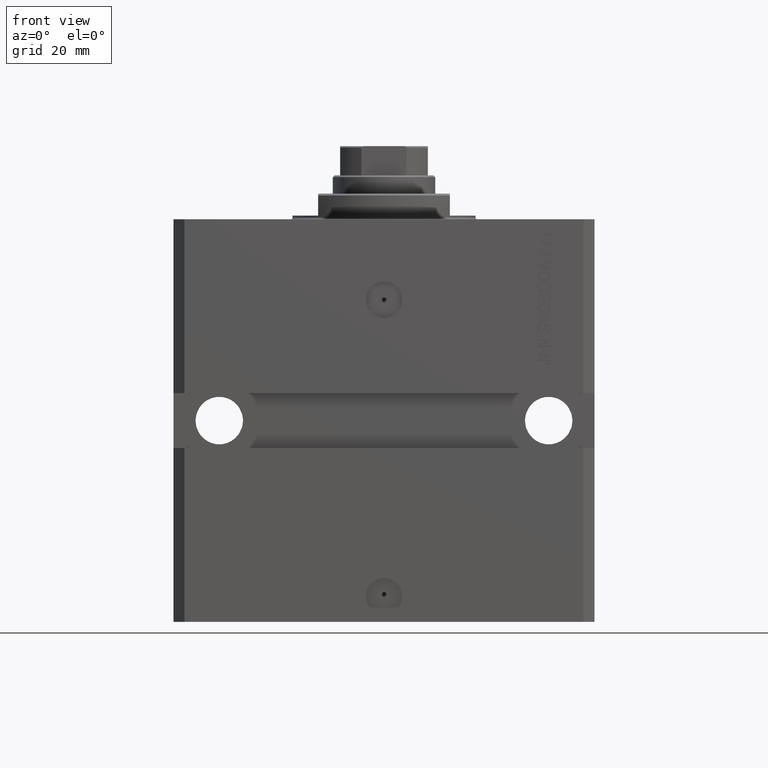
[diagram: clean part render]
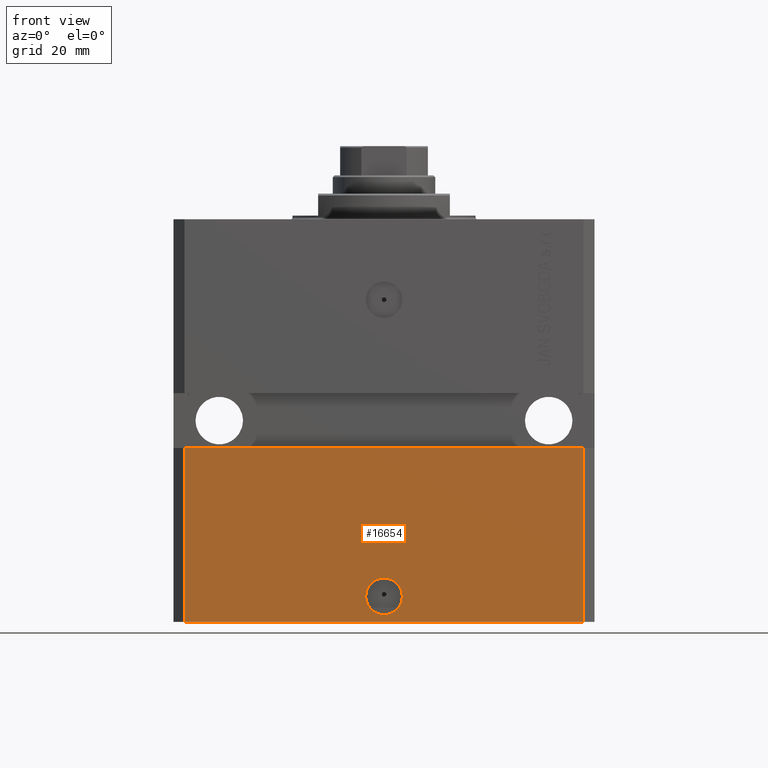
[diagram: same view with one face highlighted and labeled with its STEP entity id]
A machine part, front view. The second image highlights one B-rep face of the part: STEP entity #16654.
In plain terms, the highlighted planar face has unit normal (0, -1, 0).
Its self-contained STEP definition (entity closure, byte-faithful):
#1822 = EDGE_CURVE ( 'NONE', #22223, #6799, #10143, .T. ) ;
#2278 = VECTOR ( 'NONE', #40989, 1000.000000000000000 ) ;
#2490 = EDGE_CURVE ( 'NONE', #15392, #45887, #49194, .T. ) ;
#4549 = ORIENTED_EDGE ( 'NONE', *, *, #1822, .T. ) ;
#5079 = LINE ( 'NONE', #19751, #46240 ) ;
#5912 = AXIS2_PLACEMENT_3D ( 'NONE', #13220, #28373, #39812 ) ;
#6164 = DIRECTION ( 'NONE',  ( 1.000000000000000000, 0.000000000000000000, 0.000000000000000000 ) ) ;
#6799 = VERTEX_POINT ( 'NONE', #35980 ) ;
#7238 = LINE ( 'NONE', #22410, #10761 ) ;
#9279 = ORIENTED_EDGE ( 'NONE', *, *, #20735, .F. ) ;
#9707 = EDGE_CURVE ( 'NONE', #16826, #22223, #5079, .T. ) ;
#10143 = LINE ( 'NONE', #48706, #2278 ) ;
#10761 = VECTOR ( 'NONE', #38296, 1000.000000000000000 ) ;
#11918 = EDGE_CURVE ( 'NONE', #45887, #15392, #13065, .T. ) ;
#12133 = CARTESIAN_POINT ( 'NONE',  ( -5.000000000000000000, -44.99999999999999289, -103.0000000000000000 ) ) ;
#13065 = CIRCLE ( 'NONE', #5912, 5.000000000000006217 ) ;
#13220 = CARTESIAN_POINT ( 'NONE',  ( 5.729361939005966750E-15, -44.99999999999999289, -103.0000000000000000 ) ) ;
#13398 = CARTESIAN_POINT ( 'NONE',  ( 5.729361939005966750E-15, -44.99999999999999289, -103.0000000000000000 ) ) ;
#14143 = VERTEX_POINT ( 'NONE', #19930 ) ;
#14356 = EDGE_CURVE ( 'NONE', #16826, #14143, #7238, .T. ) ;
#15392 = VERTEX_POINT ( 'NONE', #12133 ) ;
#16654 = ADVANCED_FACE ( 'NONE', ( #20511, #24000 ), #46881, .T. ) ;
#16826 = VERTEX_POINT ( 'NONE', #26371 ) ;
#19204 = ORIENTED_EDGE ( 'NONE', *, *, #14356, .F. ) ;
#19751 = CARTESIAN_POINT ( 'NONE',  ( -54.50000000000000711, -45.00000000000000000, -110.0000000000000000 ) ) ;
#19930 = CARTESIAN_POINT ( 'NONE',  ( -54.50000000000000711, -45.00000000000000000, -62.50000000000000000 ) ) ;
#20511 = FACE_BOUND ( 'NONE', #41141, .T. ) ;
#20735 = EDGE_CURVE ( 'NONE', #14143, #6799, #34530, .T. ) ;
#22223 = VERTEX_POINT ( 'NONE', #23468 ) ;
#22410 = CARTESIAN_POINT ( 'NONE',  ( -54.50000000000000711, -45.00000000000000000, -110.0000000000000000 ) ) ;
#22985 = AXIS2_PLACEMENT_3D ( 'NONE', #13398, #35526, #6164 ) ;
#23468 = CARTESIAN_POINT ( 'NONE',  ( 54.50000000000000711, -44.99999999999998579, -110.0000000000000000 ) ) ;
#24000 = FACE_OUTER_BOUND ( 'NONE', #42352, .T. ) ;
#26371 = CARTESIAN_POINT ( 'NONE',  ( -54.50000000000000711, -45.00000000000000000, -110.0000000000000000 ) ) ;
#28079 = CARTESIAN_POINT ( 'NONE',  ( 5.000000000000012434, -44.99999999999999289, -103.0000000000000000 ) ) ;
#28373 = DIRECTION ( 'NONE',  ( 1.176083712526788232E-16, -1.000000000000000000, 0.000000000000000000 ) ) ;
#30558 = DIRECTION ( 'NONE',  ( 1.000000000000000000, 1.206764157201257045E-16, 0.000000000000000000 ) ) ;
#31221 = DIRECTION ( 'NONE',  ( 1.000000000000000000, 1.273191542001326070E-16, 0.000000000000000000 ) ) ;
#32963 = AXIS2_PLACEMENT_3D ( 'NONE', #35685, #39179, #31221 ) ;
#33091 = VECTOR ( 'NONE', #30558, 1000.000000000000000 ) ;
#34039 = CARTESIAN_POINT ( 'NONE',  ( -57.50000000000000711, -45.00000000000000000, -62.50000000000000000 ) ) ;
#34530 = LINE ( 'NONE', #34039, #33091 ) ;
#35526 = DIRECTION ( 'NONE',  ( 1.176083712526788232E-16, -1.000000000000000000, 0.000000000000000000 ) ) ;
#35685 = CARTESIAN_POINT ( 'NONE',  ( -54.50000000000000711, -45.00000000000000000, -110.0000000000000000 ) ) ;
#35980 = CARTESIAN_POINT ( 'NONE',  ( 54.49999999999997868, -44.99999999999998579, -62.50000000000000000 ) ) ;
#38296 = DIRECTION ( 'NONE',  ( 0.000000000000000000, 0.000000000000000000, 1.000000000000000000 ) ) ;
#39179 = DIRECTION ( 'NONE',  ( 1.273191542001326070E-16, -1.000000000000000000, 0.000000000000000000 ) ) ;
#39812 = DIRECTION ( 'NONE',  ( 1.000000000000000000, 0.000000000000000000, 0.000000000000000000 ) ) ;
#40989 = DIRECTION ( 'NONE',  ( 0.000000000000000000, 0.000000000000000000, 1.000000000000000000 ) ) ;
#41141 = EDGE_LOOP ( 'NONE', ( #45512, #49039 ) ) ;
#41262 = ORIENTED_EDGE ( 'NONE', *, *, #9707, .T. ) ;
#42352 = EDGE_LOOP ( 'NONE', ( #9279, #19204, #41262, #4549 ) ) ;
#42641 = DIRECTION ( 'NONE',  ( 1.000000000000000000, 1.273191542001326317E-16, 0.000000000000000000 ) ) ;
#45512 = ORIENTED_EDGE ( 'NONE', *, *, #11918, .F. ) ;
#45887 = VERTEX_POINT ( 'NONE', #28079 ) ;
#46240 = VECTOR ( 'NONE', #42641, 1000.000000000000000 ) ;
#46881 = PLANE ( 'NONE',  #32963 ) ;
#48706 = CARTESIAN_POINT ( 'NONE',  ( 54.50000000000000711, -44.99999999999998579, -110.0000000000000000 ) ) ;
#49039 = ORIENTED_EDGE ( 'NONE', *, *, #2490, .F. ) ;
#49194 = CIRCLE ( 'NONE', #22985, 5.000000000000006217 ) ;